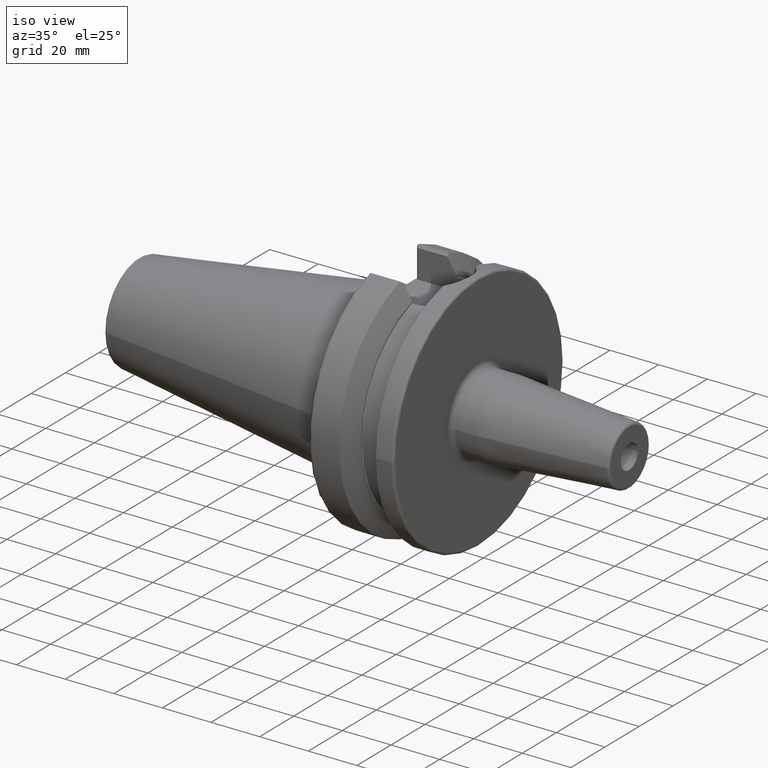
[diagram: clean part render]
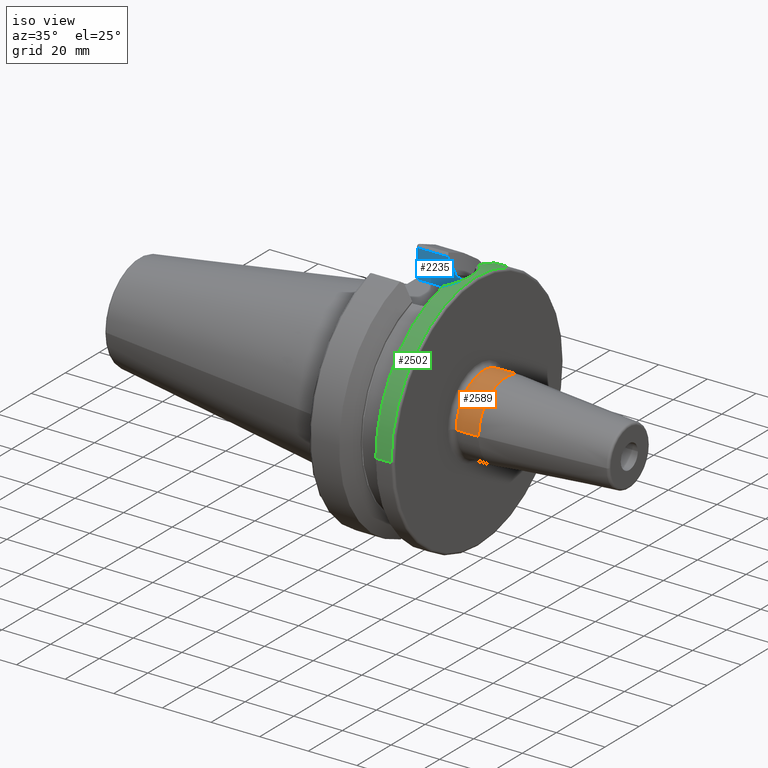
[diagram: same view with three faces highlighted in distinct colors, each labeled with its STEP entity id]
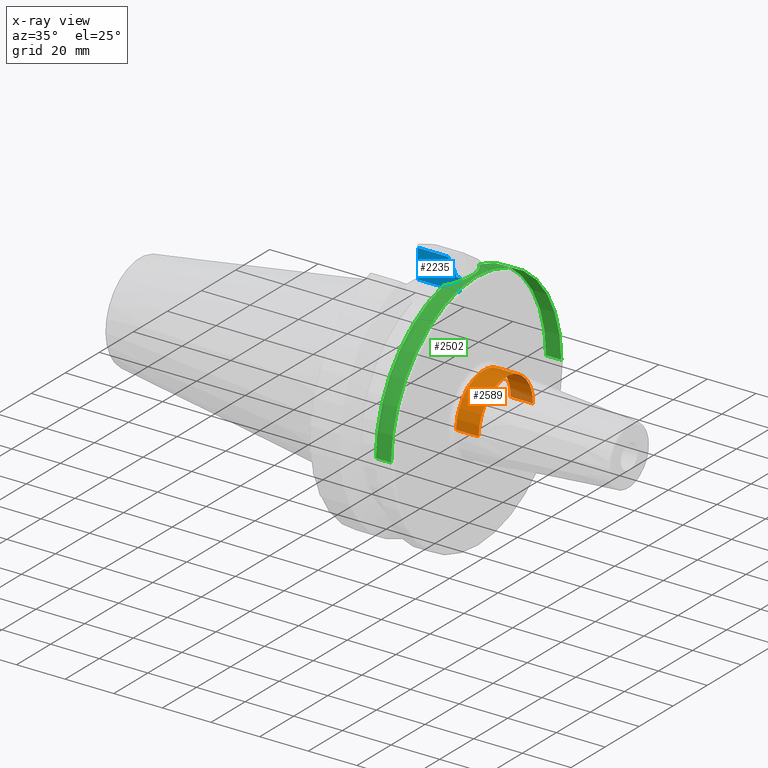
[diagram: x-ray of the same camera — body ghosted, the three highlighted faces saturated]
A machine part, iso view with three faces highlighted in distinct colors.
The next image is the same camera in x-ray (body ghosted, the three faces saturated) — at least one of them is partly hidden behind the body in this view.
Their STEP definitions:

[orange] entity #2589 — the highlighted cylindrical surface (partial cylindrical patch) has radius 16 mm, axis along (1, 0, 0).
#854=CARTESIAN_POINT('',(4.E1,0.E0,0.E0));
#855=DIRECTION('',(1.E0,0.E0,0.E0));
#856=DIRECTION('',(0.E0,1.E0,0.E0));
#857=AXIS2_PLACEMENT_3D('',#854,#855,#856);
#859=CARTESIAN_POINT('',(4.917518105530E1,0.E0,0.E0));
#860=DIRECTION('',(1.E0,0.E0,0.E0));
#861=DIRECTION('',(0.E0,1.E0,0.E0));
#862=AXIS2_PLACEMENT_3D('',#859,#860,#861);
#869=DIRECTION('',(-1.E0,0.E0,-1.771993214907E-12));
#870=VECTOR('',#869,9.175181055302E0);
#871=CARTESIAN_POINT('',(4.917518105530E1,-1.6E1,0.E0));
#872=LINE('',#871,#870);
#878=DIRECTION('',(-1.E0,0.E0,1.771938312829E-12));
#879=VECTOR('',#878,9.175181055302E0);
#880=CARTESIAN_POINT('',(4.917518105530E1,1.6E1,0.E0));
#881=LINE('',#880,#879);
#1391=CARTESIAN_POINT('',(4.917518105530E1,1.6E1,0.E0));
#1392=CARTESIAN_POINT('',(4.917518105530E1,-1.6E1,0.E0));
#1393=VERTEX_POINT('',#1391);
#1394=VERTEX_POINT('',#1392);
#1407=CARTESIAN_POINT('',(4.E1,-1.6E1,0.E0));
#1408=CARTESIAN_POINT('',(4.E1,1.6E1,0.E0));
#1409=VERTEX_POINT('',#1407);
#1410=VERTEX_POINT('',#1408);
#2575=CARTESIAN_POINT('',(3.49E1,0.E0,0.E0));
#2576=DIRECTION('',(1.E0,0.E0,0.E0));
#2577=DIRECTION('',(0.E0,-1.E0,0.E0));
#2578=AXIS2_PLACEMENT_3D('',#2575,#2576,#2577);
#2579=CYLINDRICAL_SURFACE('',#2578,1.6E1);
#2580=ORIENTED_EDGE('',*,*,#2569,.F.);
#2582=ORIENTED_EDGE('',*,*,#2581,.F.);
#2584=ORIENTED_EDGE('',*,*,#2583,.T.);
#2586=ORIENTED_EDGE('',*,*,#2585,.T.);
#2587=EDGE_LOOP('',(#2580,#2582,#2584,#2586));
#2588=FACE_OUTER_BOUND('',#2587,.F.);
#2589=ADVANCED_FACE('',(#2588),#2579,.T.);
#858=CIRCLE('',#857,1.6E1);
#863=CIRCLE('',#862,1.6E1);
#2569=EDGE_CURVE('',#1410,#1409,#858,.T.);
#2581=EDGE_CURVE('',#1393,#1410,#881,.T.);
#2583=EDGE_CURVE('',#1393,#1394,#863,.T.);
#2585=EDGE_CURVE('',#1394,#1409,#872,.T.);

[blue] entity #2235 — the highlighted planar face has unit normal (0, 1, 0).
#639=DIRECTION('',(0.E0,0.E0,1.E0));
#640=VECTOR('',#639,4.678451531613E-1);
#641=CARTESIAN_POINT('',(1.96625E1,1.29025E1,4.062531376802E1));
#642=LINE('',#641,#640);
#643=CARTESIAN_POINT('',(1.99125E1,1.29025E1,4.036293000700E1));
#644=CARTESIAN_POINT('',(1.988482223968E1,1.29025E1,4.036293000700E1));
#645=CARTESIAN_POINT('',(1.983275140013E1,1.29025E1,4.037231907874E1));
#646=CARTESIAN_POINT('',(1.976358989115E1,1.29025E1,4.040921074747E1));
#647=CARTESIAN_POINT('',(1.970597803203E1,1.29025E1,4.046933362101E1));
#648=CARTESIAN_POINT('',(1.967010312706E1,1.29025E1,4.054571527488E1));
#649=CARTESIAN_POINT('',(1.96625E1,1.29025E1,4.059802443585E1));
#650=CARTESIAN_POINT('',(1.96625E1,1.29025E1,4.062531376802E1));
#652=DIRECTION('',(1.E0,0.E0,0.E0));
#653=VECTOR('',#652,1.435E0);
#654=CARTESIAN_POINT('',(1.99125E1,1.29025E1,4.036293000700E1));
#655=LINE('',#654,#653);
#656=DIRECTION('',(0.E0,0.E0,1.E0));
#657=VECTOR('',#656,5.162930007E0);
#658=CARTESIAN_POINT('',(2.13475E1,1.29025E1,3.52E1));
#659=LINE('',#658,#657);
#660=DIRECTION('',(0.E0,0.E0,1.E0));
#661=VECTOR('',#660,1.177335042340E1);
#662=CARTESIAN_POINT('',(4.E0,1.29025E1,3.52E1));
#663=LINE('',#662,#661);
#664=DIRECTION('',(1.E0,0.E0,0.E0));
#665=VECTOR('',#664,1.240508297825E1);
#666=CARTESIAN_POINT('',(4.E0,1.29025E1,4.697335042340E1));
#667=LINE('',#666,#665);
#668=CARTESIAN_POINT('',(1.96625E1,1.29025E1,4.109315892118E1));
#669=CARTESIAN_POINT('',(1.932181966297E1,1.29025E1,4.171163717070E1));
#670=CARTESIAN_POINT('',(1.862628256782E1,1.29025E1,4.297182203666E1));
#671=CARTESIAN_POINT('',(1.754114212137E1,1.29025E1,4.493063136453E1));
#672=CARTESIAN_POINT('',(1.678855217457E1,1.29025E1,4.628456220339E1));
#673=CARTESIAN_POINT('',(1.640508297825E1,1.29025E1,4.697335042340E1));
#687=DIRECTION('',(-1.E0,0.E0,0.E0));
#688=VECTOR('',#687,1.73475E1);
#689=CARTESIAN_POINT('',(2.13475E1,1.29025E1,3.52E1));
#690=LINE('',#689,#688);
#1180=CARTESIAN_POINT('',(1.96625E1,1.29025E1,4.062531376802E1));
#1182=VERTEX_POINT('',#1180);
#1188=CARTESIAN_POINT('',(1.99125E1,1.29025E1,4.036293000700E1));
#1190=VERTEX_POINT('',#1188);
#1217=CARTESIAN_POINT('',(1.96625E1,1.29025E1,4.109315892118E1));
#1219=VERTEX_POINT('',#1217);
#1307=CARTESIAN_POINT('',(2.13475E1,1.29025E1,3.52E1));
#1309=VERTEX_POINT('',#1307);
#1322=CARTESIAN_POINT('',(2.13475E1,1.29025E1,4.036293000700E1));
#1323=VERTEX_POINT('',#1322);
#1324=VERTEX_POINT('',#673);
#1362=CARTESIAN_POINT('',(4.E0,1.29025E1,3.52E1));
#1363=CARTESIAN_POINT('',(4.E0,1.29025E1,4.697335042340E1));
#1364=VERTEX_POINT('',#1362);
#1365=VERTEX_POINT('',#1363);
#2218=CARTESIAN_POINT('',(2.13475E1,1.29025E1,3.52E1));
#2219=DIRECTION('',(0.E0,1.E0,0.E0));
#2220=DIRECTION('',(-1.E0,0.E0,0.E0));
#2221=AXIS2_PLACEMENT_3D('',#2218,#2219,#2220);
#2222=PLANE('',#2221);
#2223=ORIENTED_EDGE('',*,*,#1660,.F.);
#2224=ORIENTED_EDGE('',*,*,#1814,.F.);
#2225=ORIENTED_EDGE('',*,*,#1846,.T.);
#2226=ORIENTED_EDGE('',*,*,#1963,.F.);
#2228=ORIENTED_EDGE('',*,*,#2227,.T.);
#2230=ORIENTED_EDGE('',*,*,#2229,.T.);
#2231=ORIENTED_EDGE('',*,*,#2211,.T.);
#2232=ORIENTED_EDGE('',*,*,#1692,.F.);
#2233=EDGE_LOOP('',(#2223,#2224,#2225,#2226,#2228,#2230,#2231,#2232));
#2234=FACE_OUTER_BOUND('',#2233,.F.);
#2235=ADVANCED_FACE('',(#2234),#2222,.F.);
#651=B_SPLINE_CURVE_WITH_KNOTS('',3,(#643,#644,#645,#646,#647,#648,#649,#650),
.UNSPECIFIED.,.F.,.F.,(4,1,1,1,1,4),(0.E0,2.E-1,4.E-1,6.E-1,8.E-1,1.E0),
.UNSPECIFIED.);
#674=B_SPLINE_CURVE_WITH_KNOTS('',3,(#668,#669,#670,#671,#672,#673),
.UNSPECIFIED.,.F.,.F.,(4,1,1,4),(0.E0,3.333333333333E-1,6.666666666667E-1,1.E0),
.UNSPECIFIED.);
#1660=EDGE_CURVE('',#1182,#1219,#642,.T.);
#1692=EDGE_CURVE('',#1219,#1324,#674,.T.);
#1814=EDGE_CURVE('',#1190,#1182,#651,.T.);
#1846=EDGE_CURVE('',#1190,#1323,#655,.T.);
#1963=EDGE_CURVE('',#1309,#1323,#659,.T.);
#2211=EDGE_CURVE('',#1365,#1324,#667,.T.);
#2227=EDGE_CURVE('',#1309,#1364,#690,.T.);
#2229=EDGE_CURVE('',#1364,#1365,#663,.T.);

[green] entity #2502 — the highlighted cylindrical surface (partial cylindrical patch) has radius 49.9875 mm, axis along (1, 0, 0).
#250=DIRECTION('',(-1.E0,0.E0,0.E0));
#251=VECTOR('',#250,6.269331763825E0);
#252=CARTESIAN_POINT('',(3.7E1,-4.99875E1,0.E0));
#253=LINE('',#252,#251);
#259=DIRECTION('',(-1.E0,0.E0,0.E0));
#260=VECTOR('',#259,6.269331763825E0);
#261=CARTESIAN_POINT('',(3.7E1,4.99875E1,0.E0));
#262=LINE('',#261,#260);
#782=CARTESIAN_POINT('',(3.073066823617E1,0.E0,0.E0));
#783=DIRECTION('',(1.E0,0.E0,0.E0));
#784=DIRECTION('',(0.E0,1.E0,0.E0));
#785=AXIS2_PLACEMENT_3D('',#782,#783,#784);
#787=CARTESIAN_POINT('',(3.7E1,0.E0,0.E0));
#788=DIRECTION('',(1.E0,0.E0,0.E0));
#789=DIRECTION('',(0.E0,1.E0,0.E0));
#790=AXIS2_PLACEMENT_3D('',#787,#788,#789);
#792=CARTESIAN_POINT('',(3.073066823617E1,0.E0,0.E0));
#793=DIRECTION('',(1.E0,0.E0,0.E0));
#794=DIRECTION('',(0.E0,-2.094051574285E-1,9.778289625708E-1));
#795=AXIS2_PLACEMENT_3D('',#792,#793,#794);
#797=CARTESIAN_POINT('',(3.073066823617E1,1.046765017837E1,4.887922315251E1));
#798=CARTESIAN_POINT('',(3.093824742254E1,1.027394156657E1,4.892071033431E1));
#799=CARTESIAN_POINT('',(3.161047010606E1,9.607576099682E0,4.905940702404E1));
#800=CARTESIAN_POINT('',(3.263517600486E1,8.361597131920E0,4.929233531601E1));
#801=CARTESIAN_POINT('',(3.366872655698E1,6.670162125591E0,4.955104267859E1));
#802=CARTESIAN_POINT('',(3.445683207094E1,4.858888640768E0,4.976248055972E1));
#803=CARTESIAN_POINT('',(3.498881883781E1,2.963029384908E0,4.991203919913E1));
#804=CARTESIAN_POINT('',(3.525852360168E1,1.017396108424E0,4.998994610559E1));
#805=CARTESIAN_POINT('',(3.526344205362E1,-9.445244441774E-1,4.999137984430E1));
#806=CARTESIAN_POINT('',(3.500362395847E1,-2.891033001447E0,4.991627963537E1));
#807=CARTESIAN_POINT('',(3.448138663547E1,-4.789289725446E0,4.976926316974E1));
#808=CARTESIAN_POINT('',(3.370271475997E1,-6.604336733999E0,4.955990954998E1));
#809=CARTESIAN_POINT('',(3.267803854162E1,-8.300983390707E0,4.930264159969E1));
#810=CARTESIAN_POINT('',(3.164433381328E1,-9.571446946705E0,4.906668367984E1));
#811=CARTESIAN_POINT('',(3.095620205386E1,-1.025716232725E1,4.892430305409E1));
#812=CARTESIAN_POINT('',(3.073066823617E1,-1.046764030696E1,4.887922526651E1));
#1224=CARTESIAN_POINT('',(3.073066823617E1,4.99875E1,0.E0));
#1225=CARTESIAN_POINT('',(3.073066823617E1,1.046765017837E1,4.887922315251E1));
#1226=VERTEX_POINT('',#1224);
#1227=VERTEX_POINT('',#1225);
#1228=CARTESIAN_POINT('',(3.073066823617E1,-4.99875E1,-1.224340637448E-14));
#1230=VERTEX_POINT('',#1228);
#1232=CARTESIAN_POINT('',(3.7E1,4.99875E1,0.E0));
#1233=VERTEX_POINT('',#1232);
#1234=CARTESIAN_POINT('',(3.7E1,-4.99875E1,0.E0));
#1235=VERTEX_POINT('',#1234);
#1236=CARTESIAN_POINT('',(3.073066823617E1,-1.046764030696E1,4.887922526651E1));
#1237=VERTEX_POINT('',#1236);
#2487=CARTESIAN_POINT('',(-1.0879E2,0.E0,0.E0));
#2488=DIRECTION('',(1.E0,0.E0,0.E0));
#2489=DIRECTION('',(0.E0,-1.E0,0.E0));
#2490=AXIS2_PLACEMENT_3D('',#2487,#2488,#2489);
#2491=CYLINDRICAL_SURFACE('',#2490,4.99875E1);
#2492=ORIENTED_EDGE('',*,*,#2389,.F.);
#2493=ORIENTED_EDGE('',*,*,#1759,.F.);
#2495=ORIENTED_EDGE('',*,*,#2494,.T.);
#2496=ORIENTED_EDGE('',*,*,#1755,.T.);
#2497=ORIENTED_EDGE('',*,*,#2402,.F.);
#2499=ORIENTED_EDGE('',*,*,#2498,.F.);
#2500=EDGE_LOOP('',(#2492,#2493,#2495,#2496,#2497,#2499));
#2501=FACE_OUTER_BOUND('',#2500,.F.);
#2502=ADVANCED_FACE('',(#2501),#2491,.T.);
#786=CIRCLE('',#785,4.99875E1);
#791=CIRCLE('',#790,4.99875E1);
#796=CIRCLE('',#795,4.99875E1);
#813=B_SPLINE_CURVE_WITH_KNOTS('',3,(#797,#798,#799,#800,#801,#802,#803,#804,
#805,#806,#807,#808,#809,#810,#811,#812),.UNSPECIFIED.,.F.,.F.,(4,1,1,1,1,1,1,1,
1,1,1,1,1,4),(0.E0,3.613843176766E-2,1.201923969829E-1,2.042463621981E-1,
2.883003274134E-1,3.723542926286E-1,4.564082578438E-1,5.404622230591E-1,
6.245161882743E-1,7.085701534895E-1,7.926241187048E-1,8.766780839200E-1,
9.607320491352E-1,1.E0),.UNSPECIFIED.);
#1755=EDGE_CURVE('',#1235,#1230,#253,.T.);
#1759=EDGE_CURVE('',#1233,#1226,#262,.T.);
#2389=EDGE_CURVE('',#1226,#1227,#786,.T.);
#2402=EDGE_CURVE('',#1237,#1230,#796,.T.);
#2494=EDGE_CURVE('',#1233,#1235,#791,.T.);
#2498=EDGE_CURVE('',#1227,#1237,#813,.T.);